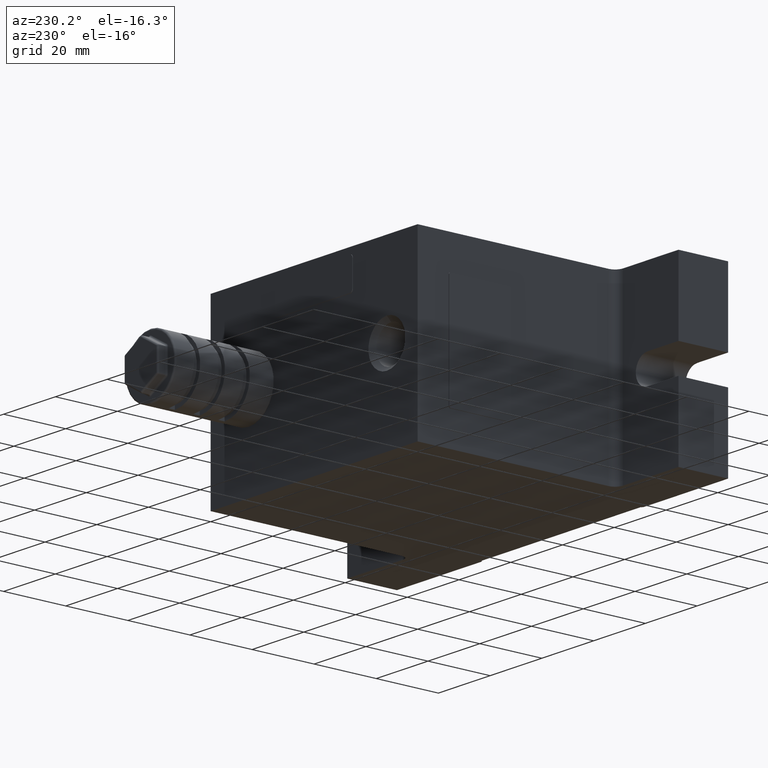
[diagram: clean part render]
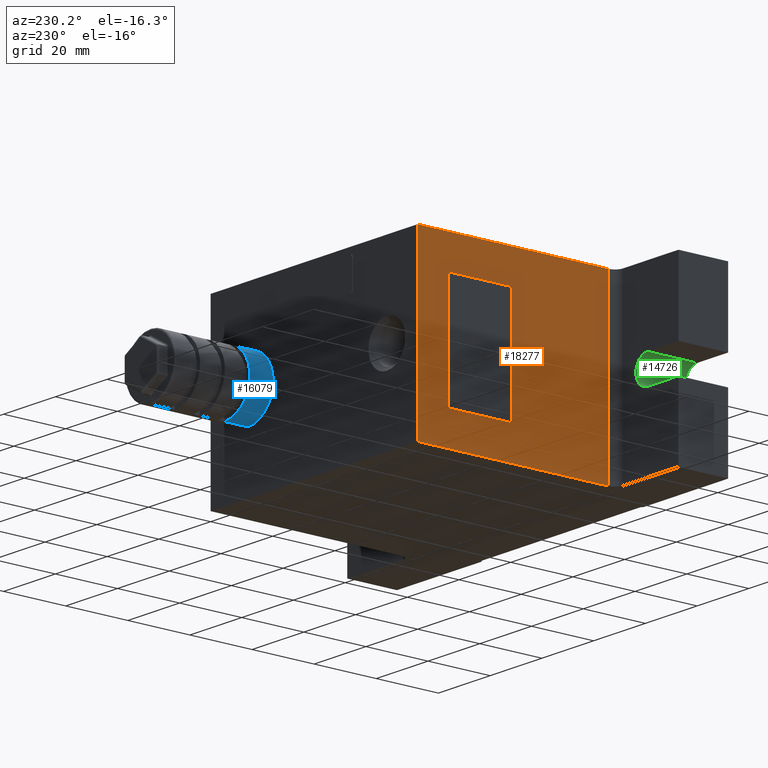
[diagram: same view with three faces highlighted in distinct colors, each labeled with its STEP entity id]
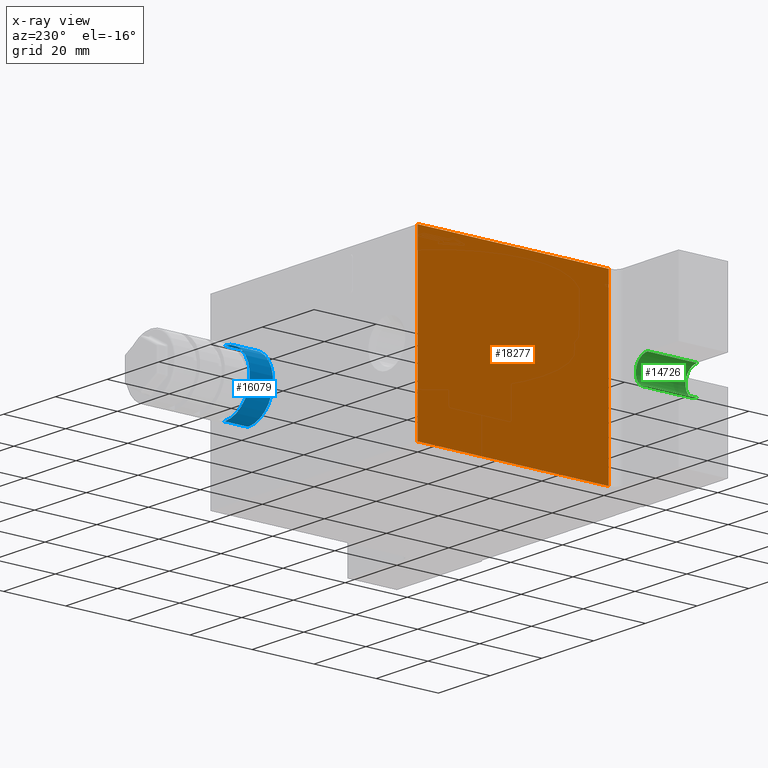
[diagram: x-ray of the same camera — body ghosted, the three highlighted faces saturated]
A machine part, auxiliary view with three faces highlighted in distinct colors.
The next image is the same camera in x-ray (body ghosted, the three faces saturated) — at least one of them is partly hidden behind the body in this view.
Their STEP definitions:

[orange] entity #18277 — the highlighted planar face has unit normal (1, 0, 0).
#640 = DIRECTION ( 'NONE',  ( 0.0000000000000000000, 0.0000000000000000000, -1.000000000000000000 ) ) ;
#651 = ORIENTED_EDGE ( 'NONE', *, *, #16339, .T. ) ;
#1133 = CARTESIAN_POINT ( 'NONE',  ( -40.00000000000000000, 40.00000000000000000, 28.00000000000000000 ) ) ;
#3670 = CARTESIAN_POINT ( 'NONE',  ( -40.00000000000000000, 40.00000000000000000, 28.00000000000000000 ) ) ;
#3749 = EDGE_CURVE ( 'NONE', #7372, #17837, #13726, .T. ) ;
#5291 = LINE ( 'NONE', #1133, #14485 ) ;
#5710 = ORIENTED_EDGE ( 'NONE', *, *, #13081, .T. ) ;
#6911 = VECTOR ( 'NONE', #9351, 1000.000000000000000 ) ;
#7075 = CARTESIAN_POINT ( 'NONE',  ( -40.00000000000000000, -21.50000000000000000, -28.00000000000000000 ) ) ;
#7372 = VERTEX_POINT ( 'NONE', #10936 ) ;
#7373 = FACE_OUTER_BOUND ( 'NONE', #17912, .T. ) ;
#7976 = LINE ( 'NONE', #13696, #15835 ) ;
#9351 = DIRECTION ( 'NONE',  ( 0.0000000000000000000, 0.0000000000000000000, 1.000000000000000000 ) ) ;
#10669 = PLANE ( 'NONE',  #15697 ) ;
#10936 = CARTESIAN_POINT ( 'NONE',  ( -40.00000000000000000, 40.00000000000000000, -28.00000000000000000 ) ) ;
#12087 = CARTESIAN_POINT ( 'NONE',  ( -40.00000000000000000, 40.00000000000000000, -28.00000000000000000 ) ) ;
#12222 = ORIENTED_EDGE ( 'NONE', *, *, #19549, .F. ) ;
#12734 = CARTESIAN_POINT ( 'NONE',  ( -40.00000000000000000, 40.00000000000000000, -28.00000000000000000 ) ) ;
#13081 = EDGE_CURVE ( 'NONE', #16850, #16664, #7976, .T. ) ;
#13696 = CARTESIAN_POINT ( 'NONE',  ( -40.00000000000000000, -21.50000000000000000, 28.00000000000000000 ) ) ;
#13726 = LINE ( 'NONE', #14411, #6911 ) ;
#13853 = ORIENTED_EDGE ( 'NONE', *, *, #3749, .F. ) ;
#13891 = DIRECTION ( 'NONE',  ( 1.000000000000000000, 0.0000000000000000000, 0.0000000000000000000 ) ) ;
#14132 = LINE ( 'NONE', #12734, #19432 ) ;
#14411 = CARTESIAN_POINT ( 'NONE',  ( -40.00000000000000000, 40.00000000000000000, -28.00000000000000000 ) ) ;
#14485 = VECTOR ( 'NONE', #18025, 1000.000000000000000 ) ;
#14501 = DIRECTION ( 'NONE',  ( 0.0000000000000000000, 1.000000000000000000, 0.0000000000000000000 ) ) ;
#15697 = AXIS2_PLACEMENT_3D ( 'NONE', #12087, #13891, #640 ) ;
#15835 = VECTOR ( 'NONE', #17315, 1000.000000000000000 ) ;
#16339 = EDGE_CURVE ( 'NONE', #16664, #17837, #5291, .T. ) ;
#16664 = VERTEX_POINT ( 'NONE', #18149 ) ;
#16850 = VERTEX_POINT ( 'NONE', #7075 ) ;
#17315 = DIRECTION ( 'NONE',  ( 0.0000000000000000000, 0.0000000000000000000, 1.000000000000000000 ) ) ;
#17837 = VERTEX_POINT ( 'NONE', #3670 ) ;
#17912 = EDGE_LOOP ( 'NONE', ( #12222, #5710, #651, #13853 ) ) ;
#18025 = DIRECTION ( 'NONE',  ( 0.0000000000000000000, 1.000000000000000000, 0.0000000000000000000 ) ) ;
#18149 = CARTESIAN_POINT ( 'NONE',  ( -40.00000000000000000, -21.50000000000000000, 28.00000000000000000 ) ) ;
#18277 = ADVANCED_FACE ( 'NONE', ( #7373 ), #10669, .F. ) ;
#19432 = VECTOR ( 'NONE', #14501, 1000.000000000000000 ) ;
#19549 = EDGE_CURVE ( 'NONE', #16850, #7372, #14132, .T. ) ;

[blue] entity #16079 — the highlighted cylindrical surface (partial cylindrical patch) has radius 9.75 mm, axis along (-0, -1, -0).
#18 = VERTEX_POINT ( 'NONE', #2613 ) ;
#380 = AXIS2_PLACEMENT_3D ( 'NONE', #18597, #3313, #6669 ) ;
#925 = CIRCLE ( 'NONE', #380, 9.750000000000000000 ) ;
#1302 = EDGE_LOOP ( 'NONE', ( #10320, #8098, #6201, #3658 ) ) ;
#1421 = VERTEX_POINT ( 'NONE', #8366 ) ;
#1852 = DIRECTION ( 'NONE',  ( 0.0000000000000000000, 0.0000000000000000000, -1.000000000000000000 ) ) ;
#2516 = CARTESIAN_POINT ( 'NONE',  ( 25.00000000000000000, 48.00000000000000000, 9.750000000000000000 ) ) ;
#2613 = CARTESIAN_POINT ( 'NONE',  ( 25.00000000000000000, 48.00000000000000000, -9.750000000000000000 ) ) ;
#3111 = EDGE_CURVE ( 'NONE', #19431, #1421, #925, .T. ) ;
#3313 = DIRECTION ( 'NONE',  ( 5.959270968386779200E-017, 1.000000000000000000, 1.089523766022739900E-016 ) ) ;
#3658 = ORIENTED_EDGE ( 'NONE', *, *, #17880, .F. ) ;
#3758 = CARTESIAN_POINT ( 'NONE',  ( 25.00000000000000000, 72.00000000000000000, 1.387778780781446000E-014 ) ) ;
#5045 = FACE_OUTER_BOUND ( 'NONE', #1302, .T. ) ;
#5417 = DIRECTION ( 'NONE',  ( -5.959270968386779200E-017, -1.000000000000000000, -1.089523766022739900E-016 ) ) ;
#5519 = VECTOR ( 'NONE', #5417, 1000.000000000000000 ) ;
#5669 = CARTESIAN_POINT ( 'NONE',  ( 24.99999999999999600, 72.00000000000000000, -9.749999999999985800 ) ) ;
#6201 = ORIENTED_EDGE ( 'NONE', *, *, #3111, .T. ) ;
#6669 = DIRECTION ( 'NONE',  ( 0.0000000000000000000, 0.0000000000000000000, -1.000000000000000000 ) ) ;
#8098 = ORIENTED_EDGE ( 'NONE', *, *, #15757, .T. ) ;
#8215 = VERTEX_POINT ( 'NONE', #2516 ) ;
#8366 = CARTESIAN_POINT ( 'NONE',  ( 25.00000000000000000, 40.50000000000000000, 9.750000000000000000 ) ) ;
#8385 = DIRECTION ( 'NONE',  ( 5.959270968386779200E-017, 1.000000000000000000, 1.089523766022739900E-016 ) ) ;
#8468 = EDGE_CURVE ( 'NONE', #18, #8215, #21832, .T. ) ;
#10217 = AXIS2_PLACEMENT_3D ( 'NONE', #3758, #18695, #15349 ) ;
#10289 = CYLINDRICAL_SURFACE ( 'NONE', #10217, 9.750000000000000000 ) ;
#10320 = ORIENTED_EDGE ( 'NONE', *, *, #8468, .F. ) ;
#10516 = LINE ( 'NONE', #15474, #5519 ) ;
#15349 = DIRECTION ( 'NONE',  ( 0.0000000000000000000, 0.0000000000000000000, 1.000000000000000000 ) ) ;
#15474 = CARTESIAN_POINT ( 'NONE',  ( 25.00000000000000000, 72.00000000000000000, 9.750000000000014200 ) ) ;
#15517 = CARTESIAN_POINT ( 'NONE',  ( 24.99999999999999300, 40.50000000000000000, -9.750000000000000000 ) ) ;
#15757 = EDGE_CURVE ( 'NONE', #18, #19431, #20489, .T. ) ;
#16079 = ADVANCED_FACE ( 'NONE', ( #5045 ), #10289, .T. ) ;
#17041 = CARTESIAN_POINT ( 'NONE',  ( 25.00000000000000000, 48.00000000000000000, 1.387778780781446000E-014 ) ) ;
#17441 = DIRECTION ( 'NONE',  ( -5.959270968386779200E-017, -1.000000000000000000, -1.089523766022739900E-016 ) ) ;
#17880 = EDGE_CURVE ( 'NONE', #8215, #1421, #10516, .T. ) ;
#18144 = AXIS2_PLACEMENT_3D ( 'NONE', #17041, #8385, #1852 ) ;
#18597 = CARTESIAN_POINT ( 'NONE',  ( 25.00000000000000000, 40.50000000000000000, 0.0000000000000000000 ) ) ;
#18637 = VECTOR ( 'NONE', #17441, 1000.000000000000000 ) ;
#18695 = DIRECTION ( 'NONE',  ( -5.959270968386779200E-017, -1.000000000000000000, -1.089523766022739900E-016 ) ) ;
#19431 = VERTEX_POINT ( 'NONE', #15517 ) ;
#20489 = LINE ( 'NONE', #5669, #18637 ) ;
#21832 = CIRCLE ( 'NONE', #18144, 9.750000000000000000 ) ;

[green] entity #14726 — the highlighted cylindrical surface (edge-blend (fillet) strip) has radius 4.5 mm, axis along (0, 1, 0).
#358 = VERTEX_POINT ( 'NONE', #7623 ) ;
#874 = EDGE_CURVE ( 'NONE', #358, #12705, #14130, .T. ) ;
#1188 = VERTEX_POINT ( 'NONE', #16655 ) ;
#2007 = LINE ( 'NONE', #3925, #14891 ) ;
#2083 = ORIENTED_EDGE ( 'NONE', *, *, #20869, .F. ) ;
#2123 = EDGE_CURVE ( 'NONE', #358, #3870, #6225, .T. ) ;
#2209 = DIRECTION ( 'NONE',  ( 0.0000000000000000000, 1.000000000000000000, 0.0000000000000000000 ) ) ;
#2320 = EDGE_LOOP ( 'NONE', ( #10991, #2083, #11283, #21181 ) ) ;
#2461 = AXIS2_PLACEMENT_3D ( 'NONE', #6040, #4213, #15944 ) ;
#3870 = VERTEX_POINT ( 'NONE', #9573 ) ;
#3925 = CARTESIAN_POINT ( 'NONE',  ( -52.00000000000000000, -40.00000000000000000, -4.500000000000000000 ) ) ;
#4207 = AXIS2_PLACEMENT_3D ( 'NONE', #18521, #15112, #15241 ) ;
#4213 = DIRECTION ( 'NONE',  ( 0.0000000000000000000, 1.000000000000000000, 0.0000000000000000000 ) ) ;
#4486 = EDGE_CURVE ( 'NONE', #3870, #1188, #13025, .T. ) ;
#6040 = CARTESIAN_POINT ( 'NONE',  ( -52.00000000000000000, -40.00000000000000000, -3.673819061467134900E-015 ) ) ;
#6225 = LINE ( 'NONE', #12794, #12795 ) ;
#7623 = CARTESIAN_POINT ( 'NONE',  ( -52.00000000000000000, -40.00000000000000000, 4.500000000000000000 ) ) ;
#8944 = DIRECTION ( 'NONE',  ( 0.0000000000000000000, 0.0000000000000000000, 1.000000000000000000 ) ) ;
#9573 = CARTESIAN_POINT ( 'NONE',  ( -52.00000000000000000, -24.00000000000000000, 4.500000000000000000 ) ) ;
#10991 = ORIENTED_EDGE ( 'NONE', *, *, #4486, .T. ) ;
#11283 = ORIENTED_EDGE ( 'NONE', *, *, #874, .F. ) ;
#11320 = AXIS2_PLACEMENT_3D ( 'NONE', #17422, #2209, #8944 ) ;
#12705 = VERTEX_POINT ( 'NONE', #15272 ) ;
#12794 = CARTESIAN_POINT ( 'NONE',  ( -52.00000000000000000, -40.00000000000000000, 4.500000000000000000 ) ) ;
#12795 = VECTOR ( 'NONE', #17897, 1000.000000000000000 ) ;
#13025 = CIRCLE ( 'NONE', #4207, 4.500000000000000000 ) ;
#14130 = CIRCLE ( 'NONE', #2461, 4.500000000000000000 ) ;
#14714 = CYLINDRICAL_SURFACE ( 'NONE', #11320, 4.500000000000000000 ) ;
#14726 = ADVANCED_FACE ( 'NONE', ( #16818 ), #14714, .F. ) ;
#14891 = VECTOR ( 'NONE', #20856, 1000.000000000000000 ) ;
#15112 = DIRECTION ( 'NONE',  ( 0.0000000000000000000, 1.000000000000000000, 0.0000000000000000000 ) ) ;
#15241 = DIRECTION ( 'NONE',  ( 0.0000000000000000000, 0.0000000000000000000, -1.000000000000000000 ) ) ;
#15272 = CARTESIAN_POINT ( 'NONE',  ( -52.00000000000000000, -40.00000000000000000, -4.500000000000000000 ) ) ;
#15944 = DIRECTION ( 'NONE',  ( 0.0000000000000000000, 0.0000000000000000000, -1.000000000000000000 ) ) ;
#16655 = CARTESIAN_POINT ( 'NONE',  ( -52.00000000000000000, -24.00000000000000000, -4.500000000000000000 ) ) ;
#16818 = FACE_OUTER_BOUND ( 'NONE', #2320, .T. ) ;
#17422 = CARTESIAN_POINT ( 'NONE',  ( -52.00000000000000000, -40.00000000000000000, -3.673819061467134900E-015 ) ) ;
#17897 = DIRECTION ( 'NONE',  ( 0.0000000000000000000, 1.000000000000000000, 0.0000000000000000000 ) ) ;
#18521 = CARTESIAN_POINT ( 'NONE',  ( -52.00000000000000000, -24.00000000000000000, -3.673819061467134900E-015 ) ) ;
#20856 = DIRECTION ( 'NONE',  ( 0.0000000000000000000, 1.000000000000000000, 0.0000000000000000000 ) ) ;
#20869 = EDGE_CURVE ( 'NONE', #12705, #1188, #2007, .T. ) ;
#21181 = ORIENTED_EDGE ( 'NONE', *, *, #2123, .T. ) ;